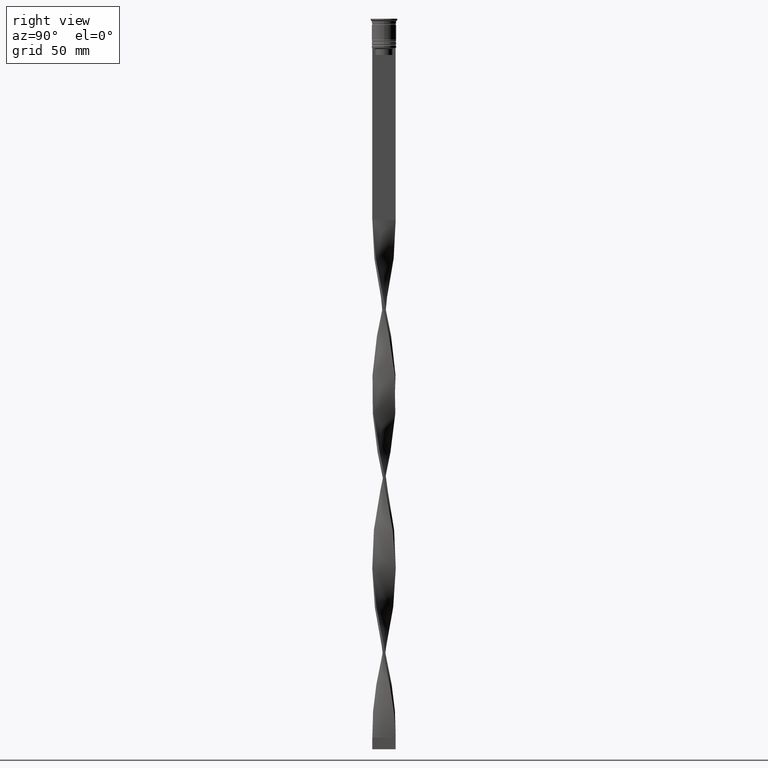
[diagram: clean part render]
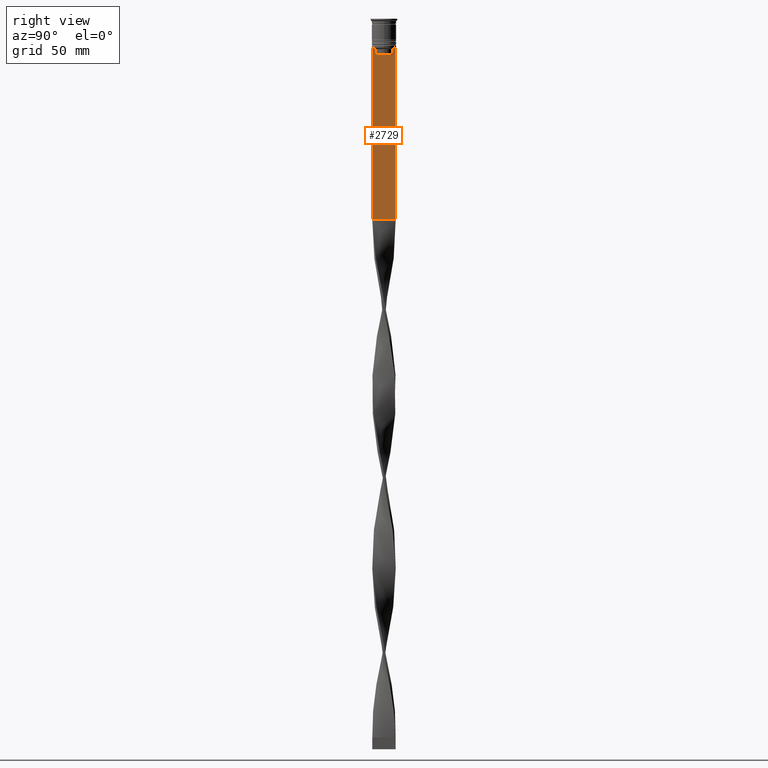
[diagram: same view with one face highlighted and labeled with its STEP entity id]
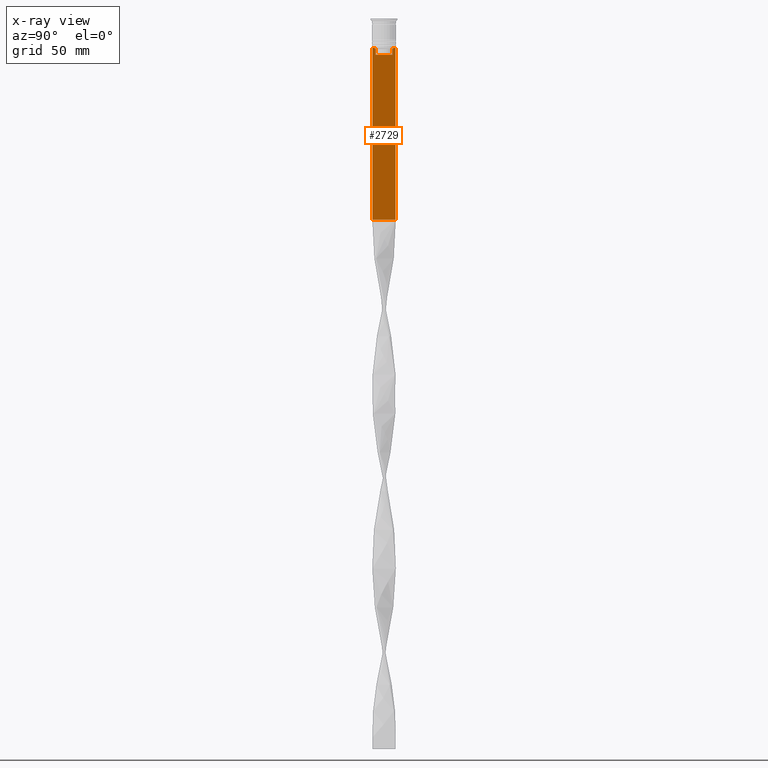
[diagram: x-ray of the same camera — body ghosted, the highlighted face saturated]
A machine part, right view. The second image highlights one B-rep face of the part: STEP entity #2729.
The next image is the same camera in x-ray: the body ghosted, the highlighted face saturated — about 0% of this face is hidden behind the body in this view.
In plain terms, the highlighted planar face has unit normal (-1, 0, 0).
Its self-contained STEP definition (entity closure, byte-faithful):
#82 = ORIENTED_EDGE ( 'NONE', *, *, #1624, .T. ) ;
#108 = CARTESIAN_POINT ( 'NONE',  ( 0.5000000000000000000, -3.615591237958188042, 0.000000000000000000 ) ) ;
#131 = DIRECTION ( 'NONE',  ( 0.000000000000000000, 0.000000000000000000, 1.000000000000000000 ) ) ;
#167 = LINE ( 'NONE', #108, #3441 ) ;
#184 = VECTOR ( 'NONE', #2513, 1000.000000000000000 ) ;
#380 = VERTEX_POINT ( 'NONE', #849 ) ;
#383 = VECTOR ( 'NONE', #2813, 1000.000000000000000 ) ;
#412 = CARTESIAN_POINT ( 'NONE',  ( 0.5000000000000000000, 4.119769411022908834, -12.50000000000000000 ) ) ;
#466 = CARTESIAN_POINT ( 'NONE',  ( 0.5000000000000000000, -3.783746406711539390, -12.83343003979123509 ) ) ;
#491 = EDGE_CURVE ( 'NONE', #951, #380, #867, .T. ) ;
#496 = EDGE_CURVE ( 'NONE', #3816, #1580, #885, .T. ) ;
#513 = VECTOR ( 'NONE', #3910, 1000.000000000000000 ) ;
#631 = CARTESIAN_POINT ( 'NONE',  ( 0.5000000000000000000, -3.615591237958188486, -15.50000000000000000 ) ) ;
#747 = CARTESIAN_POINT ( 'NONE',  ( 0.5000000000000000000, -3.951794168112527927, -12.66675163073525923 ) ) ;
#771 = DIRECTION ( 'NONE',  ( 0.000000000000000000, 1.000000000000000000, 0.000000000000000000 ) ) ;
#804 = CARTESIAN_POINT ( 'NONE',  ( 0.5000000000000000000, 3.615591237958188042, -13.00000000000000178 ) ) ;
#849 = CARTESIAN_POINT ( 'NONE',  ( 0.5000000000000000000, 3.615591237958188486, -15.50000000000000000 ) ) ;
#867 = LINE ( 'NONE', #2080, #3505 ) ;
#885 = LINE ( 'NONE', #3937, #3247 ) ;
#915 = B_SPLINE_CURVE_WITH_KNOTS ( 'NONE', 3,
 ( #412, #2233, #3789, #3180 ),
 .UNSPECIFIED., .F., .F.,
 ( 4, 4 ),
 ( 0.007067514914986626831, 0.007777582239375525376 ),
 .UNSPECIFIED. ) ;
#951 = VERTEX_POINT ( 'NONE', #804 ) ;
#966 = VERTEX_POINT ( 'NONE', #3814 ) ;
#1049 = LINE ( 'NONE', #3728, #184 ) ;
#1140 = VERTEX_POINT ( 'NONE', #2901 ) ;
#1198 = DIRECTION ( 'NONE',  ( 0.000000000000000000, -1.000000000000000000, 0.000000000000000000 ) ) ;
#1201 = EDGE_CURVE ( 'NONE', #3098, #966, #2281, .T. ) ;
#1260 = ORIENTED_EDGE ( 'NONE', *, *, #2701, .T. ) ;
#1453 = EDGE_CURVE ( 'NONE', #1580, #1140, #1541, .T. ) ;
#1541 = LINE ( 'NONE', #1573, #383 ) ;
#1552 = ORIENTED_EDGE ( 'NONE', *, *, #2817, .T. ) ;
#1573 = CARTESIAN_POINT ( 'NONE',  ( 0.5000000000000000000, -4.999999999999999112, -2.450124378879110054 ) ) ;
#1580 = VERTEX_POINT ( 'NONE', #3506 ) ;
#1624 = EDGE_CURVE ( 'NONE', #2426, #951, #915, .T. ) ;
#1673 = DIRECTION ( 'NONE',  ( -1.000000000000000000, 0.000000000000000000, 0.000000000000000000 ) ) ;
#1687 = CARTESIAN_POINT ( 'NONE',  ( 0.5000000000000000000, -3.615591237958188042, -13.00000000000000178 ) ) ;
#1784 = EDGE_LOOP ( 'NONE', ( #1871, #82, #1841, #2680, #1552, #3905, #3589, #2066, #1260, #3005 ) ) ;
#1841 = ORIENTED_EDGE ( 'NONE', *, *, #491, .T. ) ;
#1871 = ORIENTED_EDGE ( 'NONE', *, *, #2254, .T. ) ;
#1915 = VECTOR ( 'NONE', #771, 1000.000000000000000 ) ;
#1931 = CARTESIAN_POINT ( 'NONE',  ( 0.5000000000000000000, -3.615591237958188042, -13.00000000000000178 ) ) ;
#1951 = FACE_OUTER_BOUND ( 'NONE', #1784, .T. ) ;
#1968 = DIRECTION ( 'NONE',  ( -0.000000000000000000, -0.000000000000000000, 1.000000000000000000 ) ) ;
#1985 = CARTESIAN_POINT ( 'NONE',  ( 0.5000000000000000000, 5.000000000000000888, -2.450124378879110054 ) ) ;
#2066 = ORIENTED_EDGE ( 'NONE', *, *, #1453, .T. ) ;
#2080 = CARTESIAN_POINT ( 'NONE',  ( 0.5000000000000000000, 3.615591237958188042, 0.000000000000000000 ) ) ;
#2116 = EDGE_CURVE ( 'NONE', #2250, #3816, #3293, .T. ) ;
#2229 = CARTESIAN_POINT ( 'NONE',  ( 0.5000000000000000000, -4.119769411022908834, -12.50000000000000000 ) ) ;
#2233 = CARTESIAN_POINT ( 'NONE',  ( 0.5000000000000000000, 3.951794205566887985, -12.66675159355373737 ) ) ;
#2250 = VERTEX_POINT ( 'NONE', #1687 ) ;
#2254 = EDGE_CURVE ( 'NONE', #3098, #2426, #1049, .T. ) ;
#2281 = LINE ( 'NONE', #1985, #2371 ) ;
#2286 = LINE ( 'NONE', #2573, #1915 ) ;
#2371 = VECTOR ( 'NONE', #2859, 1000.000000000000000 ) ;
#2406 = DIRECTION ( 'NONE',  ( 0.000000000000000000, 0.000000000000000000, -1.000000000000000000 ) ) ;
#2426 = VERTEX_POINT ( 'NONE', #2635 ) ;
#2434 = CARTESIAN_POINT ( 'NONE',  ( 0.5000000000000000000, 3.650000000000003464, -15.50000000000000000 ) ) ;
#2513 = DIRECTION ( 'NONE',  ( 0.000000000000000000, -1.000000000000000000, 0.000000000000000000 ) ) ;
#2571 = CARTESIAN_POINT ( 'NONE',  ( 0.5000000000000000000, -4.119769411022908834, -12.50000000000000000 ) ) ;
#2573 = CARTESIAN_POINT ( 'NONE',  ( 0.5000000000000000000, -4.999999999999999112, -86.00000000000000000 ) ) ;
#2635 = CARTESIAN_POINT ( 'NONE',  ( 0.5000000000000000000, 4.119769411022908834, -12.50000000000000000 ) ) ;
#2680 = ORIENTED_EDGE ( 'NONE', *, *, #3102, .T. ) ;
#2693 = LINE ( 'NONE', #2434, #513 ) ;
#2701 = EDGE_CURVE ( 'NONE', #1140, #966, #2286, .T. ) ;
#2729 = ADVANCED_FACE ( 'NONE', ( #1951 ), #2847, .F. ) ;
#2813 = DIRECTION ( 'NONE',  ( 0.000000000000000000, 0.000000000000000000, -1.000000000000000000 ) ) ;
#2817 = EDGE_CURVE ( 'NONE', #3856, #2250, #167, .T. ) ;
#2847 = PLANE ( 'NONE',  #3639 ) ;
#2859 = DIRECTION ( 'NONE',  ( 0.000000000000000000, 0.000000000000000000, -1.000000000000000000 ) ) ;
#2901 = CARTESIAN_POINT ( 'NONE',  ( 0.5000000000000000000, -4.999999999999999112, -86.00000000000000000 ) ) ;
#3005 = ORIENTED_EDGE ( 'NONE', *, *, #1201, .F. ) ;
#3098 = VERTEX_POINT ( 'NONE', #3945 ) ;
#3102 = EDGE_CURVE ( 'NONE', #380, #3856, #2693, .T. ) ;
#3180 = CARTESIAN_POINT ( 'NONE',  ( 0.5000000000000000000, 3.615591237958188042, -13.00000000000000178 ) ) ;
#3247 = VECTOR ( 'NONE', #1198, 1000.000000000000000 ) ;
#3293 = B_SPLINE_CURVE_WITH_KNOTS ( 'NONE', 3,
 ( #1931, #466, #747, #2571 ),
 .UNSPECIFIED., .F., .F.,
 ( 4, 4 ),
 ( 0.01745179617248910492, 0.01816207215777258452 ),
 .UNSPECIFIED. ) ;
#3441 = VECTOR ( 'NONE', #1968, 1000.000000000000000 ) ;
#3505 = VECTOR ( 'NONE', #2406, 1000.000000000000000 ) ;
#3506 = CARTESIAN_POINT ( 'NONE',  ( 0.5000000000000000000, -4.999999999999999112, -12.50000000000000000 ) ) ;
#3589 = ORIENTED_EDGE ( 'NONE', *, *, #496, .T. ) ;
#3639 = AXIS2_PLACEMENT_3D ( 'NONE', #3823, #1673, #131 ) ;
#3728 = CARTESIAN_POINT ( 'NONE',  ( 0.5000000000000000000, -4.999999999999999112, -12.50000000000000000 ) ) ;
#3789 = CARTESIAN_POINT ( 'NONE',  ( 0.5000000000000000000, 3.783746449387932476, -12.83342999751715752 ) ) ;
#3814 = CARTESIAN_POINT ( 'NONE',  ( 0.5000000000000000000, 5.000000000000000888, -86.00000000000000000 ) ) ;
#3816 = VERTEX_POINT ( 'NONE', #2229 ) ;
#3823 = CARTESIAN_POINT ( 'NONE',  ( 0.5000000000000000000, -4.999999999999999112, -2.450124378879110054 ) ) ;
#3856 = VERTEX_POINT ( 'NONE', #631 ) ;
#3905 = ORIENTED_EDGE ( 'NONE', *, *, #2116, .T. ) ;
#3910 = DIRECTION ( 'NONE',  ( 0.000000000000000000, -1.000000000000000000, 0.000000000000000000 ) ) ;
#3937 = CARTESIAN_POINT ( 'NONE',  ( 0.5000000000000000000, -4.999999999999999112, -12.50000000000000000 ) ) ;
#3945 = CARTESIAN_POINT ( 'NONE',  ( 0.5000000000000000000, 5.000000000000000888, -12.50000000000000000 ) ) ;